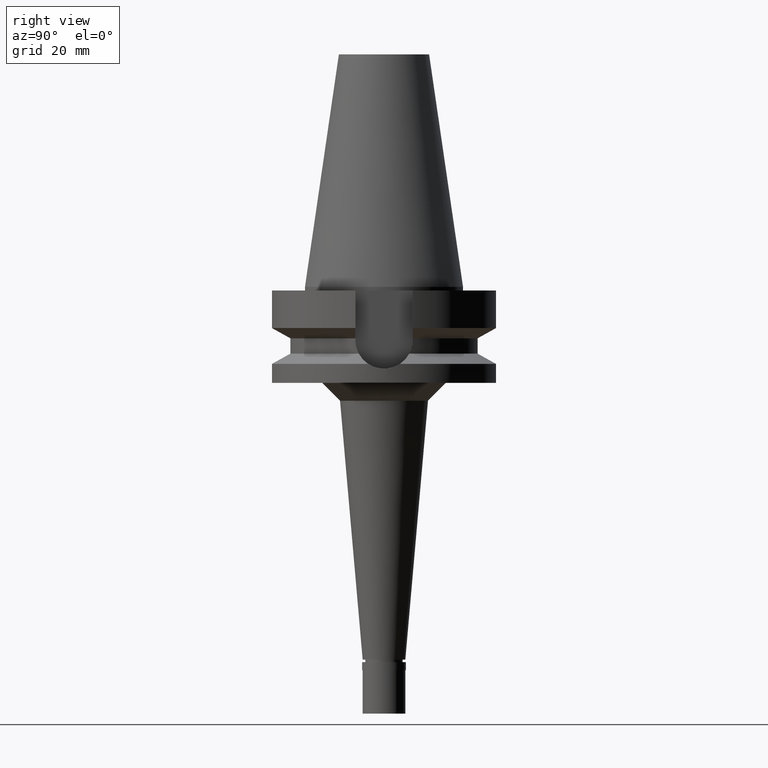
[diagram: clean part render]
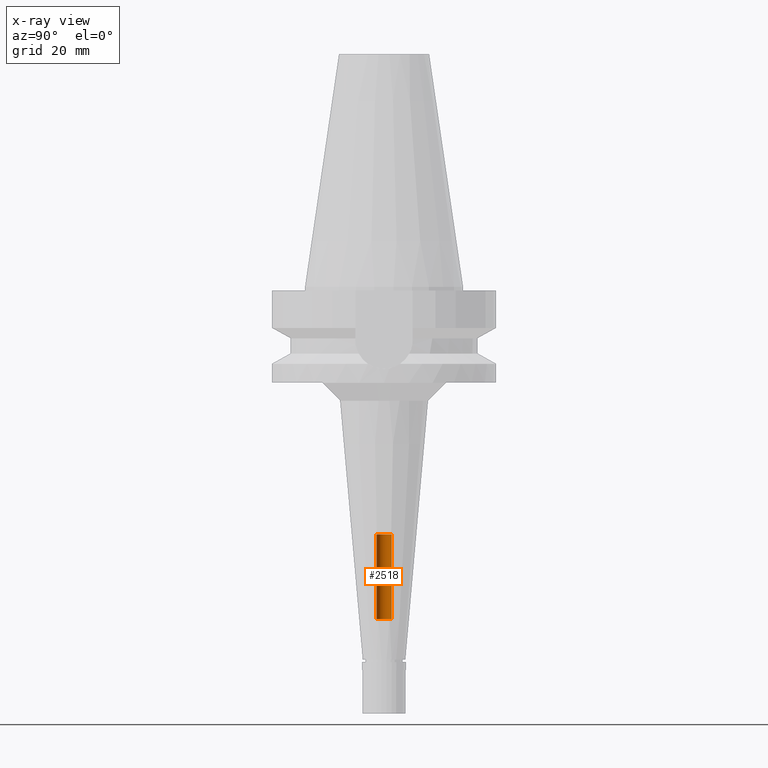
[diagram: x-ray — body ghosted, one internal face saturated and labeled with its STEP entity id]
A machine part, right view, then the same camera in x-ray: the body is ghosted and one INTERNAL B-rep face — a face not visible from any outside direction — is saturated and labeled: STEP entity #2518.
In plain terms, the highlighted cylindrical surface (edge-blend (fillet) strip) has radius 2.1 mm, axis along (0, 0, -1).
Its self-contained STEP definition (entity closure, byte-faithful):
#79 = CARTESIAN_POINT ( 'NONE',  ( 0.0000000000000000000, -2.100000000000000089, -93.50000000000000000 ) ) ;
#85 = EDGE_CURVE ( 'NONE', #1676, #1317, #284, .T. ) ;
#149 = CARTESIAN_POINT ( 'NONE',  ( 0.0000000000000000000, 2.100000000000000089, -93.50000000000000000 ) ) ;
#284 = CIRCLE ( 'NONE', #422, 2.100000000000000089 ) ;
#285 = VECTOR ( 'NONE', #1052, 1000.000000000000000 ) ;
#331 = DIRECTION ( 'NONE',  ( 0.0000000000000000000, 0.0000000000000000000, 1.000000000000000000 ) ) ;
#341 = EDGE_LOOP ( 'NONE', ( #474, #2413, #1460, #646 ) ) ;
#422 = AXIS2_PLACEMENT_3D ( 'NONE', #2071, #987, #1839 ) ;
#437 = EDGE_CURVE ( 'NONE', #1876, #1317, #2835, .T. ) ;
#474 = ORIENTED_EDGE ( 'NONE', *, *, #85, .T. ) ;
#633 = LINE ( 'NONE', #149, #285 ) ;
#646 = ORIENTED_EDGE ( 'NONE', *, *, #1568, .T. ) ;
#691 = AXIS2_PLACEMENT_3D ( 'NONE', #2094, #887, #931 ) ;
#816 = CARTESIAN_POINT ( 'NONE',  ( 0.0000000000000000000, 2.100000000000000089, -93.50000000000000000 ) ) ;
#831 = CARTESIAN_POINT ( 'NONE',  ( 0.0000000000000000000, 2.100000000000000089, -69.59999999999999432 ) ) ;
#887 = DIRECTION ( 'NONE',  ( 0.0000000000000000000, 0.0000000000000000000, -1.000000000000000000 ) ) ;
#931 = DIRECTION ( 'NONE',  ( 0.0000000000000000000, -1.000000000000000000, 0.0000000000000000000 ) ) ;
#987 = DIRECTION ( 'NONE',  ( 0.0000000000000000000, 0.0000000000000000000, 1.000000000000000000 ) ) ;
#1052 = DIRECTION ( 'NONE',  ( 0.0000000000000000000, 0.0000000000000000000, 1.000000000000000000 ) ) ;
#1075 = AXIS2_PLACEMENT_3D ( 'NONE', #1500, #2910, #1272 ) ;
#1272 = DIRECTION ( 'NONE',  ( 0.0000000000000000000, -1.000000000000000000, 0.0000000000000000000 ) ) ;
#1295 = VERTEX_POINT ( 'NONE', #816 ) ;
#1317 = VERTEX_POINT ( 'NONE', #2675 ) ;
#1460 = ORIENTED_EDGE ( 'NONE', *, *, #2841, .T. ) ;
#1500 = CARTESIAN_POINT ( 'NONE',  ( 0.0000000000000000000, 2.136641270472000125E-14, -93.50000000000000000 ) ) ;
#1568 = EDGE_CURVE ( 'NONE', #1295, #1676, #633, .T. ) ;
#1676 = VERTEX_POINT ( 'NONE', #831 ) ;
#1770 = VECTOR ( 'NONE', #331, 1000.000000000000000 ) ;
#1839 = DIRECTION ( 'NONE',  ( 0.0000000000000000000, 1.000000000000000000, 0.0000000000000000000 ) ) ;
#1872 = FACE_OUTER_BOUND ( 'NONE', #341, .T. ) ;
#1876 = VERTEX_POINT ( 'NONE', #2552 ) ;
#2071 = CARTESIAN_POINT ( 'NONE',  ( 0.0000000000000000000, 2.136641270472000125E-14, -69.59999999999999432 ) ) ;
#2094 = CARTESIAN_POINT ( 'NONE',  ( 0.0000000000000000000, 2.136641270472000125E-14, 74.46999999999999886 ) ) ;
#2304 = CYLINDRICAL_SURFACE ( 'NONE', #691, 2.100000000000000089 ) ;
#2386 = CIRCLE ( 'NONE', #1075, 2.100000000000000089 ) ;
#2413 = ORIENTED_EDGE ( 'NONE', *, *, #437, .F. ) ;
#2518 = ADVANCED_FACE ( 'NONE', ( #1872 ), #2304, .F. ) ;
#2552 = CARTESIAN_POINT ( 'NONE',  ( 0.0000000000000000000, -2.100000000000000089, -93.50000000000000000 ) ) ;
#2675 = CARTESIAN_POINT ( 'NONE',  ( 0.0000000000000000000, -2.100000000000000089, -69.59999999999999432 ) ) ;
#2835 = LINE ( 'NONE', #79, #1770 ) ;
#2841 = EDGE_CURVE ( 'NONE', #1876, #1295, #2386, .T. ) ;
#2910 = DIRECTION ( 'NONE',  ( 0.0000000000000000000, 0.0000000000000000000, -1.000000000000000000 ) ) ;